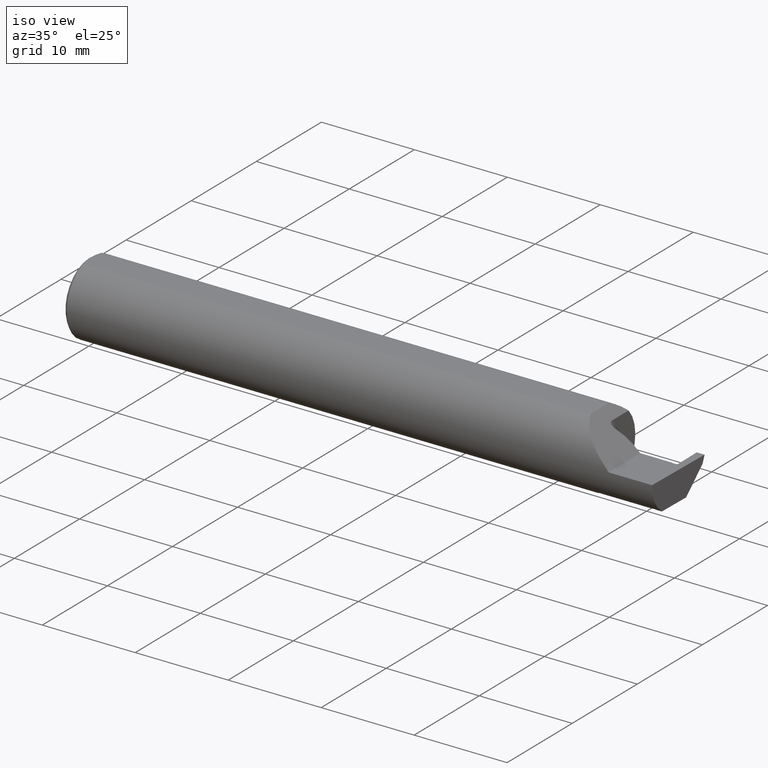
[diagram: clean part render]
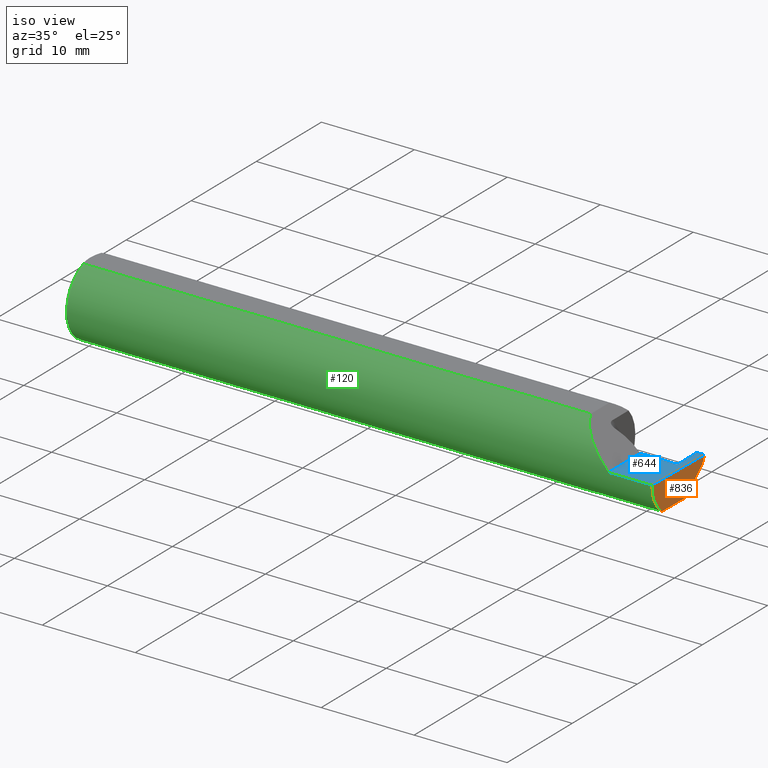
[diagram: same view with three faces highlighted in distinct colors, each labeled with its STEP entity id]
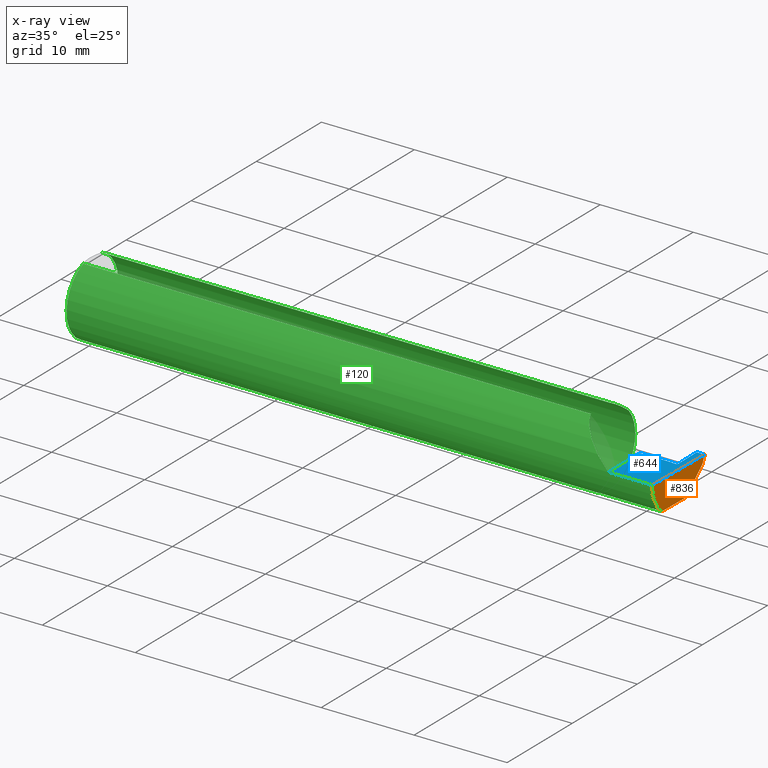
[diagram: x-ray of the same camera — body ghosted, the three highlighted faces saturated]
A machine part, iso view with three faces highlighted in distinct colors.
The next image is the same camera in x-ray (body ghosted, the three faces saturated) — at least one of them is partly hidden behind the body in this view.
Their STEP definitions:

[orange] entity #836 — the highlighted planar face has unit normal (-0.9995, 0.0174, 0.0262).
#41 = ORIENTED_EDGE ( 'NONE', *, *, #674, .T. ) ;
#55 = FACE_OUTER_BOUND ( 'NONE', #425, .T. ) ;
#108 = VERTEX_POINT ( 'NONE', #590 ) ;
#115 = DIRECTION ( 'NONE',  ( -0.01745240643727716257, -0.9998476951563912696, 1.869448656733061176E-16 ) ) ;
#121 = ORIENTED_EDGE ( 'NONE', *, *, #440, .F. ) ;
#126 = VERTEX_POINT ( 'NONE', #301 ) ;
#132 = DIRECTION ( 'NONE',  ( -0.01745240643727716603, -0.9998476951563912696, 0.000000000000000000 ) ) ;
#135 = LINE ( 'NONE', #218, #255 ) ;
#161 = CARTESIAN_POINT ( 'NONE',  ( 2.492408115719126460, -0.09360841750841747411, -0.1249186702281520206 ) ) ;
#176 = LINE ( 'NONE', #267, #456 ) ;
#195 =( BOUNDED_CURVE ( )  B_SPLINE_CURVE ( 3, ( #161, #454, #846, #765 ),
 .UNSPECIFIED., .F., .T. ) 
 B_SPLINE_CURVE_WITH_KNOTS ( ( 4, 4 ),
 ( 0.5517985523994612951, 0.5878737167659243701 ),
 .UNSPECIFIED. ) 
 CURVE ( )  GEOMETRIC_REPRESENTATION_ITEM ( )  RATIONAL_B_SPLINE_CURVE ( ( 1.000000000000000000, 0.9998915514833921492, 0.9998915514833921492, 1.000000000000000000 ) ) 
 REPRESENTATION_ITEM ( '' )  );
#197 = DIRECTION ( 'NONE',  ( -0.03084697155452407330, -0.7067702824630920366, -0.7067702824630894831 ) ) ;
#199 = ORIENTED_EDGE ( 'NONE', *, *, #466, .F. ) ;
#209 = EDGE_CURVE ( 'NONE', #939, #126, #530, .T. ) ;
#218 = CARTESIAN_POINT ( 'NONE',  ( 2.498907590953288960, 0.1410674343035965006, -0.03315840968442382991 ) ) ;
#255 = VECTOR ( 'NONE', #197, 39.37007874015748854 ) ;
#267 = CARTESIAN_POINT ( 'NONE',  ( 2.495673289801201733, 0.09357530910345747410, -0.1250000000000000278 ) ) ;
#301 = CARTESIAN_POINT ( 'NONE',  ( 2.494588929872255001, -0.1561000000000000443, 0.000000000000000000 ) ) ;
#317 = VECTOR ( 'NONE', #132, 39.37007874015748143 ) ;
#342 = DIRECTION ( 'NONE',  ( -0.9995050723230146650, 0.01744642593347468448, 0.02617694830787320806 ) ) ;
#352 = ORIENTED_EDGE ( 'NONE', *, *, #209, .F. ) ;
#353 = CARTESIAN_POINT ( 'NONE',  ( 2.500000000000000000, 0.1539000000000000090, 0.000000000000000000 ) ) ;
#364 = LINE ( 'NONE', #513, #317 ) ;
#396 = CARTESIAN_POINT ( 'NONE',  ( 2.492495113650786021, -0.1336908980339254205, -0.09488266708345007017 ) ) ;
#425 = EDGE_LOOP ( 'NONE', ( #41, #799, #199, #121, #833, #352 ) ) ;
#430 = PLANE ( 'NONE',  #914 ) ;
#440 = EDGE_CURVE ( 'NONE', #949, #845, #809, .T. ) ;
#454 = CARTESIAN_POINT ( 'NONE',  ( 2.492432917398131220, -0.09210618219364773152, -0.1249728871357007887 ) ) ;
#456 = VECTOR ( 'NONE', #115, 39.37007874015748143 ) ;
#466 = EDGE_CURVE ( 'NONE', #845, #108, #135, .T. ) ;
#513 = CARTESIAN_POINT ( 'NONE',  ( 2.500000000000000000, 0.1539000000000000090, 0.000000000000000000 ) ) ;
#522 = CARTESIAN_POINT ( 'NONE',  ( 2.499907390804593899, 0.1529096977137292535, -0.002876046671974680051 ) ) ;
#530 =( BOUNDED_CURVE ( )  B_SPLINE_CURVE ( 3, ( #676, #396, #608, #693 ),
 .UNSPECIFIED., .F., .F. ) 
 B_SPLINE_CURVE_WITH_KNOTS ( ( 4, 4 ),
 ( 0.05521439950980804034, 0.9829226100289724100 ),
 .UNSPECIFIED. ) 
 CURVE ( )  GEOMETRIC_REPRESENTATION_ITEM ( )  RATIONAL_B_SPLINE_CURVE ( ( 1.000000000000000000, 0.9295565493311498395, 0.9295565493311498395, 1.000000000000000000 ) ) 
 REPRESENTATION_ITEM ( '' )  );
#590 = CARTESIAN_POINT ( 'NONE',  ( 2.494899167008080454, 0.04922584398801997663, -0.1250000000000000278 ) ) ;
#608 = CARTESIAN_POINT ( 'NONE',  ( 2.493277140361873201, -0.1561000000000000165, -0.05008759057876776416 ) ) ;
#674 = EDGE_CURVE ( 'NONE', #939, #694, #195, .T. ) ;
#676 = CARTESIAN_POINT ( 'NONE',  ( 2.492408115719126460, -0.09360841750841747411, -0.1249186702281520206 ) ) ;
#683 = VECTOR ( 'NONE', #876, 39.37007874015748854 ) ;
#693 = CARTESIAN_POINT ( 'NONE',  ( 2.494588929872255001, -0.1561000000000000443, 0.000000000000000000 ) ) ;
#694 = VERTEX_POINT ( 'NONE', #929 ) ;
#726 = CARTESIAN_POINT ( 'NONE',  ( 2.499001794690755673, 0.1432258439880203515, -0.03099999999999999978 ) ) ;
#731 = CARTESIAN_POINT ( 'NONE',  ( 2.492408115719126460, -0.09360841750841747411, -0.1249186702281520206 ) ) ;
#765 = CARTESIAN_POINT ( 'NONE',  ( 2.492484680420020027, -0.08910000000000001252, -0.1250000000000000000 ) ) ;
#785 = EDGE_CURVE ( 'NONE', #108, #694, #176, .T. ) ;
#799 = ORIENTED_EDGE ( 'NONE', *, *, #785, .F. ) ;
#809 = LINE ( 'NONE', #522, #683 ) ;
#812 = CARTESIAN_POINT ( 'NONE',  ( 2.500000000000000000, 0.1539000000000000090, 0.000000000000000000 ) ) ;
#833 = ORIENTED_EDGE ( 'NONE', *, *, #965, .T. ) ;
#836 = ADVANCED_FACE ( 'NONE', ( #55 ), #430, .F. ) ;
#845 = VERTEX_POINT ( 'NONE', #726 ) ;
#846 = CARTESIAN_POINT ( 'NONE',  ( 2.492458441733171881, -0.09060321336276837279, -0.1250000000000000278 ) ) ;
#876 = DIRECTION ( 'NONE',  ( -0.03043175897092292859, -0.3254173665140246419, -0.9450806556146477133 ) ) ;
#914 = AXIS2_PLACEMENT_3D ( 'NONE', #353, #342, #940 ) ;
#929 = CARTESIAN_POINT ( 'NONE',  ( 2.492484680420020027, -0.08910000000000001252, -0.1250000000000000000 ) ) ;
#939 = VERTEX_POINT ( 'NONE', #731 ) ;
#940 = DIRECTION ( 'NONE',  ( 0.02618093305822682959, 0.000000000000000000, 0.9996572206232497981 ) ) ;
#949 = VERTEX_POINT ( 'NONE', #812 ) ;
#965 = EDGE_CURVE ( 'NONE', #949, #126, #364, .T. ) ;

[blue] entity #644 — the highlighted planar face has unit normal (-0, 0, -1).
#2 = LINE ( 'NONE', #831, #24 ) ;
#24 = VECTOR ( 'NONE', #388, 39.37007874015748143 ) ;
#69 = ORIENTED_EDGE ( 'NONE', *, *, #909, .T. ) ;
#73 = VERTEX_POINT ( 'NONE', #203 ) ;
#76 = CARTESIAN_POINT ( 'NONE',  ( 2.461471356043865466, 0.03389999999999733504, -4.703959157766966161E-11 ) ) ;
#82 = B_SPLINE_CURVE_WITH_KNOTS ( 'NONE', 1,
 ( #741, #893 ),
 .UNSPECIFIED., .F., .F.,
 ( 2, 2 ),
 ( 0.000000000000000000, 7.184204902311844461E-05 ),
 .UNSPECIFIED. ) ;
#83 = VERTEX_POINT ( 'NONE', #210 ) ;
#87 = CARTESIAN_POINT ( 'NONE',  ( 2.399999999999999911, 0.1539000000000000090, -2.694222958124035986E-19 ) ) ;
#126 = VERTEX_POINT ( 'NONE', #301 ) ;
#127 = DIRECTION ( 'NONE',  ( -1.000000000000000000, -0.000000000000000000, -0.000000000000000000 ) ) ;
#132 = DIRECTION ( 'NONE',  ( -0.01745240643727716603, -0.9998476951563912696, 0.000000000000000000 ) ) ;
#137 = VECTOR ( 'NONE', #589, 39.37007874015748143 ) ;
#159 = CARTESIAN_POINT ( 'NONE',  ( 2.444500000000001450, 0.03590000000000012625, 7.028497217831607559E-18 ) ) ;
#193 = LINE ( 'NONE', #950, #334 ) ;
#203 = CARTESIAN_POINT ( 'NONE',  ( 2.310000000000000053, 0.03589999999999998748, 2.326828918379970872E-17 ) ) ;
#210 = CARTESIAN_POINT ( 'NONE',  ( 2.461471356043865466, 0.03389999999999733504, -4.703959157766966161E-11 ) ) ;
#211 = EDGE_CURVE ( 'NONE', #73, #248, #2, .T. ) ;
#212 = DIRECTION ( 'NONE',  ( -1.000000000000000000, 0.000000000000000000, 1.224646799147353700E-16 ) ) ;
#227 = CARTESIAN_POINT ( 'NONE',  ( 2.310000000000000053, -0.1560999999999999888, 2.326828918379970872E-17 ) ) ;
#233 = LINE ( 'NONE', #87, #913 ) ;
#235 = VERTEX_POINT ( 'NONE', #227 ) ;
#248 = VERTEX_POINT ( 'NONE', #159 ) ;
#260 = ORIENTED_EDGE ( 'NONE', *, *, #832, .F. ) ;
#261 = CARTESIAN_POINT ( 'NONE',  ( 2.466499999986526692, 0.1539000000000000090, -2.694222958124035986E-19 ) ) ;
#285 = FACE_OUTER_BOUND ( 'NONE', #772, .T. ) ;
#292 = B_SPLINE_CURVE_WITH_KNOTS ( 'NONE', 1,
 ( #891, #963 ),
 .UNSPECIFIED., .F., .F.,
 ( 2, 2 ),
 ( 6.844623790517414348E-15, 0.002867533701434276348 ),
 .UNSPECIFIED. ) ;
#301 = CARTESIAN_POINT ( 'NONE',  ( 2.494588929872255001, -0.1561000000000000443, 0.000000000000000000 ) ) ;
#310 = VERTEX_POINT ( 'NONE', #735 ) ;
#313 = EDGE_CURVE ( 'NONE', #83, #310, #629, .T. ) ;
#317 = VECTOR ( 'NONE', #132, 39.37007874015748143 ) ;
#319 = ORIENTED_EDGE ( 'NONE', *, *, #965, .F. ) ;
#327 = EDGE_CURVE ( 'NONE', #837, #720, #292, .T. ) ;
#329 = ORIENTED_EDGE ( 'NONE', *, *, #211, .F. ) ;
#334 = VECTOR ( 'NONE', #127, 39.37007874015748143 ) ;
#335 = ORIENTED_EDGE ( 'NONE', *, *, #553, .T. ) ;
#362 = CARTESIAN_POINT ( 'NONE',  ( 2.310000000000000053, -0.2000000000000000111, 2.326828918379970872E-17 ) ) ;
#364 = LINE ( 'NONE', #513, #317 ) ;
#388 = DIRECTION ( 'NONE',  ( 1.000000000000000000, 0.000000000000000000, 0.000000000000000000 ) ) ;
#404 =( BOUNDED_CURVE ( )  B_SPLINE_CURVE ( 3, ( #596, #616, #901, #76 ),
 .UNSPECIFIED., .F., .F. ) 
 B_SPLINE_CURVE_WITH_KNOTS ( ( 4, 4 ),
 ( 4.336808689942023514E-19, 0.0002808519285673021903 ),
 .UNSPECIFIED. ) 
 CURVE ( )  GEOMETRIC_REPRESENTATION_ITEM ( )  RATIONAL_B_SPLINE_CURVE ( ( 1.000000000000000000, 0.8006061761999023751, 0.8006061761999023751, 1.000000000000000000 ) ) 
 REPRESENTATION_ITEM ( '' )  );
#409 = EDGE_CURVE ( 'NONE', #235, #73, #511, .T. ) ;
#461 = AXIS2_PLACEMENT_3D ( 'NONE', #819, #587, #212 ) ;
#472 = ORIENTED_EDGE ( 'NONE', *, *, #734, .F. ) ;
#511 = LINE ( 'NONE', #362, #137 ) ;
#513 = CARTESIAN_POINT ( 'NONE',  ( 2.500000000000000000, 0.1539000000000000090, 0.000000000000000000 ) ) ;
#553 = EDGE_CURVE ( 'NONE', #720, #83, #404, .T. ) ;
#587 = DIRECTION ( 'NONE',  ( -1.224646799147353700E-16, 0.000000000000000000, -1.000000000000000000 ) ) ;
#589 = DIRECTION ( 'NONE',  ( -0.000000000000000000, 1.000000000000000000, -0.000000000000000000 ) ) ;
#596 = CARTESIAN_POINT ( 'NONE',  ( 2.468470289915451144, 0.04102216684466002128, -1.256631204474260778E-10 ) ) ;
#616 = CARTESIAN_POINT ( 'NONE',  ( 2.468542847896572745, 0.03686532263356499806, -1.229295645786682751E-10 ) ) ;
#629 = B_SPLINE_CURVE_WITH_KNOTS ( 'NONE', 1,
 ( #898, #647 ),
 .UNSPECIFIED., .F., .F.,
 ( 2, 2 ),
 ( 0.000000000000000000, 0.0003802724434284199262 ),
 .UNSPECIFIED. ) ;
#644 = ADVANCED_FACE ( 'NONE', ( #285 ), #968, .F. ) ;
#647 = CARTESIAN_POINT ( 'NONE',  ( 2.446500000003375863, 0.03390000000033664002, -4.831952869992545383E-11 ) ) ;
#714 = ORIENTED_EDGE ( 'NONE', *, *, #327, .T. ) ;
#720 = VERTEX_POINT ( 'NONE', #754 ) ;
#734 = EDGE_CURVE ( 'NONE', #837, #949, #233, .T. ) ;
#735 = CARTESIAN_POINT ( 'NONE',  ( 2.446500000003375863, 0.03390000000033664002, -4.831952869992545383E-11 ) ) ;
#741 = CARTESIAN_POINT ( 'NONE',  ( 2.446500000003375863, 0.03390000000033664002, -4.831952869992545383E-11 ) ) ;
#754 = CARTESIAN_POINT ( 'NONE',  ( 2.468470289915451144, 0.04102216684466002128, -1.256631204474260778E-10 ) ) ;
#772 = EDGE_LOOP ( 'NONE', ( #260, #319, #472, #714, #335, #967, #69, #329, #776 ) ) ;
#776 = ORIENTED_EDGE ( 'NONE', *, *, #409, .F. ) ;
#812 = CARTESIAN_POINT ( 'NONE',  ( 2.500000000000000000, 0.1539000000000000090, 0.000000000000000000 ) ) ;
#819 = CARTESIAN_POINT ( 'NONE',  ( 2.500000000000000000, -0.2000000000000000111, 0.000000000000000000 ) ) ;
#831 = CARTESIAN_POINT ( 'NONE',  ( 2.205000000000000071, 0.03590000000000001523, 3.612708057484693206E-17 ) ) ;
#832 = EDGE_CURVE ( 'NONE', #126, #235, #193, .T. ) ;
#837 = VERTEX_POINT ( 'NONE', #261 ) ;
#838 = DIRECTION ( 'NONE',  ( 1.000000000000000000, -0.000000000000000000, -0.000000000000000000 ) ) ;
#891 = CARTESIAN_POINT ( 'NONE',  ( 2.466499999986526692, 0.1539000000000000090, -2.694222958124035986E-19 ) ) ;
#893 = CARTESIAN_POINT ( 'NONE',  ( 2.444500000000001450, 0.03590000000000012625, 7.028497217831607559E-18 ) ) ;
#898 = CARTESIAN_POINT ( 'NONE',  ( 2.461471356043865466, 0.03389999999999733504, -4.703959157766966161E-11 ) ) ;
#901 = CARTESIAN_POINT ( 'NONE',  ( 2.465628833460029146, 0.03389999999987911017, -1.205295656915241009E-10 ) ) ;
#909 = EDGE_CURVE ( 'NONE', #310, #248, #82, .T. ) ;
#913 = VECTOR ( 'NONE', #838, 39.37007874015748143 ) ;
#949 = VERTEX_POINT ( 'NONE', #812 ) ;
#950 = CARTESIAN_POINT ( 'NONE',  ( 3.749399456654646757E-32, -0.1560999999999999888, 3.061616997868384127E-16 ) ) ;
#963 = CARTESIAN_POINT ( 'NONE',  ( 2.468470289915451144, 0.04102216684466002128, -1.256631204474260778E-10 ) ) ;
#965 = EDGE_CURVE ( 'NONE', #949, #126, #364, .T. ) ;
#967 = ORIENTED_EDGE ( 'NONE', *, *, #313, .T. ) ;
#968 = PLANE ( 'NONE',  #461 ) ;

[green] entity #120 — the highlighted cylindrical surface (partial cylindrical patch) has radius 3.9649 mm, axis along (-1, -0, -0).
#11 = CIRCLE ( 'NONE', #752, 0.1560999999999999888 ) ;
#19 = CARTESIAN_POINT ( 'NONE',  ( 2.467958605918360693, -0.09612678835013575840, -0.1229930940699539982 ) ) ;
#30 = ORIENTED_EDGE ( 'NONE', *, *, #63, .F. ) ;
#47 = EDGE_CURVE ( 'NONE', #635, #667, #960, .T. ) ;
#50 = EDGE_CURVE ( 'NONE', #648, #635, #369, .T. ) ;
#53 = CARTESIAN_POINT ( 'NONE',  ( 2.172651720989708490, 0.07823201029329630851, 0.1373482790102923123 ) ) ;
#61 = CARTESIAN_POINT ( 'NONE',  ( 2.205000000000000071, 0.000000000000000000, 0.000000000000000000 ) ) ;
#63 = EDGE_CURVE ( 'NONE', #98, #437, #284, .T. ) ;
#64 = CARTESIAN_POINT ( 'NONE',  ( 2.214390565699350777, -0.08631243322371086324, -0.1301077001157307789 ) ) ;
#70 = CARTESIAN_POINT ( 'NONE',  ( 2.205000000000000515, -0.05502817059483720158, -0.1460791239054557156 ) ) ;
#72 = CARTESIAN_POINT ( 'NONE',  ( 2.205000000000000515, -0.05502817059483720158, -0.1460791239054557156 ) ) ;
#89 = CARTESIAN_POINT ( 'NONE',  ( 2.464512453545273818, -0.09635449354741776329, -0.1228129773130508806 ) ) ;
#91 = DIRECTION ( 'NONE',  ( -1.000000000000000000, -0.000000000000000000, -0.000000000000000000 ) ) ;
#93 = CARTESIAN_POINT ( 'NONE',  ( 2.460151538880659849, -0.09614402534619650997, -0.1229778415935772889 ) ) ;
#98 = VERTEX_POINT ( 'NONE', #964 ) ;
#102 = ORIENTED_EDGE ( 'NONE', *, *, #50, .F. ) ;
#104 = CARTESIAN_POINT ( 'NONE',  ( 2.163900000000000823, -0.05497272050753899270, 0.1460999999999999799 ) ) ;
#113 = ORIENTED_EDGE ( 'NONE', *, *, #863, .F. ) ;
#120 = ADVANCED_FACE ( 'NONE', ( #142 ), #442, .T. ) ;
#125 = CARTESIAN_POINT ( 'NONE',  ( 2.229999999999999982, -0.09360841750841744635, -0.1249186702281520206 ) ) ;
#126 = VERTEX_POINT ( 'NONE', #301 ) ;
#127 = DIRECTION ( 'NONE',  ( -1.000000000000000000, -0.000000000000000000, -0.000000000000000000 ) ) ;
#142 = FACE_OUTER_BOUND ( 'NONE', #928, .T. ) ;
#148 = CARTESIAN_POINT ( 'NONE',  ( 2.454544682360682462, -0.09587255434391700470, -0.1231895957532103958 ) ) ;
#149 = EDGE_CURVE ( 'NONE', #453, #458, #895, .T. ) ;
#153 = ORIENTED_EDGE ( 'NONE', *, *, #572, .T. ) ;
#155 = CARTESIAN_POINT ( 'NONE',  ( 2.452675738242421577, -0.09578185624616381011, -0.1232601283368374850 ) ) ;
#158 = EDGE_CURVE ( 'NONE', #458, #648, #617, .T. ) ;
#193 = LINE ( 'NONE', #950, #334 ) ;
#198 = AXIS2_PLACEMENT_3D ( 'NONE', #294, #594, #974 ) ;
#209 = EDGE_CURVE ( 'NONE', #939, #126, #530, .T. ) ;
#219 = DIRECTION ( 'NONE',  ( -1.000000000000000000, -0.000000000000000000, -0.000000000000000000 ) ) ;
#226 = CARTESIAN_POINT ( 'NONE',  ( 0.01499999999999999944, 0.000000000000000000, 0.000000000000000000 ) ) ;
#227 = CARTESIAN_POINT ( 'NONE',  ( 2.310000000000000053, -0.1560999999999999888, 2.326828918379970872E-17 ) ) ;
#235 = VERTEX_POINT ( 'NONE', #227 ) ;
#238 = CARTESIAN_POINT ( 'NONE',  ( 2.470920899338991283, -0.09360841750841744635, -0.1249186702281519928 ) ) ;
#244 = ORIENTED_EDGE ( 'NONE', *, *, #395, .F. ) ;
#250 = CARTESIAN_POINT ( 'NONE',  ( 2.310000000000000053, -0.1560999999999999888, 2.326828918379970872E-17 ) ) ;
#266 = ORIENTED_EDGE ( 'NONE', *, *, #158, .F. ) ;
#277 = CARTESIAN_POINT ( 'NONE',  ( 0.000000000000000000, 0.05497272050753900657, 0.1460999999999999799 ) ) ;
#278 = LINE ( 'NONE', #585, #598 ) ;
#283 = CARTESIAN_POINT ( 'NONE',  ( 2.205382848617945424, -0.06353102748571685943, -0.1426585117573466455 ) ) ;
#284 = LINE ( 'NONE', #277, #618 ) ;
#291 = CARTESIAN_POINT ( 'NONE',  ( 2.204999999999998295, -0.05933838711026685753, -0.1444554604868196757 ) ) ;
#294 = CARTESIAN_POINT ( 'NONE',  ( 0.000000000000000000, 0.000000000000000000, 0.000000000000000000 ) ) ;
#301 = CARTESIAN_POINT ( 'NONE',  ( 2.494588929872255001, -0.1561000000000000443, 0.000000000000000000 ) ) ;
#322 = CARTESIAN_POINT ( 'NONE',  ( 2.465758433798619809, -0.09641450834076170651, -0.1227658445228524409 ) ) ;
#334 = VECTOR ( 'NONE', #127, 39.37007874015748143 ) ;
#340 = EDGE_CURVE ( 'NONE', #667, #911, #870, .T. ) ;
#357 = ORIENTED_EDGE ( 'NONE', *, *, #340, .F. ) ;
#360 = VECTOR ( 'NONE', #573, 39.37007874015748143 ) ;
#368 = CARTESIAN_POINT ( 'NONE',  ( 2.449421300275415270, -0.09360841750841744635, -0.1249186702281520206 ) ) ;
#369 = B_SPLINE_CURVE_WITH_KNOTS ( 'NONE', 3,
 ( #378, #745, #523, #368 ),
 .UNSPECIFIED., .F., .F.,
 ( 4, 4 ),
 ( 0.000000000000000000, 7.520563975645600462E-05 ),
 .UNSPECIFIED. ) ;
#370 = DIRECTION ( 'NONE',  ( 1.000000000000000000, 0.000000000000000000, 0.000000000000000000 ) ) ;
#378 = CARTESIAN_POINT ( 'NONE',  ( 2.450806800179966327, -0.09569100258198982856, -0.1233306207916494146 ) ) ;
#382 = CARTESIAN_POINT ( 'NONE',  ( 2.458282582672913108, -0.09605363889359384844, -0.1230484523818361764 ) ) ;
#389 = ORIENTED_EDGE ( 'NONE', *, *, #952, .F. ) ;
#395 = EDGE_CURVE ( 'NONE', #602, #793, #432, .T. ) ;
#396 = CARTESIAN_POINT ( 'NONE',  ( 2.492495113650786021, -0.1336908980339254205, -0.09488266708345007017 ) ) ;
#398 = CARTESIAN_POINT ( 'NONE',  ( 2.205000000000000071, 0.1155084845368506419, 0.1050000000000006206 ) ) ;
#412 = ORIENTED_EDGE ( 'NONE', *, *, #486, .T. ) ;
#428 = CARTESIAN_POINT ( 'NONE',  ( 0.000000000000000000, -0.05497272050753900657, 0.1460999999999999799 ) ) ;
#432 = LINE ( 'NONE', #428, #360 ) ;
#434 = CARTESIAN_POINT ( 'NONE',  ( 0.01499999999999999944, 0.000000000000000000, -0.1560999999999999888 ) ) ;
#437 = VERTEX_POINT ( 'NONE', #662 ) ;
#442 = CYLINDRICAL_SURFACE ( 'NONE', #198, 0.1560999999999999888 ) ;
#449 = CARTESIAN_POINT ( 'NONE',  ( 2.242809217309687853, -0.1561000000000000165, 0.06719078269031264483 ) ) ;
#452 = CARTESIAN_POINT ( 'NONE',  ( 2.469692882973116621, -0.09506542078536019125, -0.1238152914559213363 ) ) ;
#453 = VERTEX_POINT ( 'NONE', #517 ) ;
#457 = CARTESIAN_POINT ( 'NONE',  ( 2.450806800179966327, -0.09569100258198982856, -0.1233306207916494146 ) ) ;
#458 = VERTEX_POINT ( 'NONE', #658 ) ;
#470 = DIRECTION ( 'NONE',  ( 0.000000000000000000, 0.000000000000000000, 1.000000000000000000 ) ) ;
#474 = CARTESIAN_POINT ( 'NONE',  ( 2.163900000000000823, -0.05497272050753899270, 0.1460999999999999799 ) ) ;
#476 = ORIENTED_EDGE ( 'NONE', *, *, #149, .F. ) ;
#486 = EDGE_CURVE ( 'NONE', #98, #764, #564, .T. ) ;
#491 = ORIENTED_EDGE ( 'NONE', *, *, #540, .F. ) ;
#507 = CARTESIAN_POINT ( 'NONE',  ( 2.225298065053173513, -0.09360841750841726594, -0.1249186702281522426 ) ) ;
#517 = CARTESIAN_POINT ( 'NONE',  ( 2.470920899338991283, -0.09360841750841744635, -0.1249186702281519928 ) ) ;
#523 = CARTESIAN_POINT ( 'NONE',  ( 2.449883294676054923, -0.09430673936950594027, -0.1243953793204867347 ) ) ;
#525 = CARTESIAN_POINT ( 'NONE',  ( 2.462020501176675147, -0.09623425573211674688, -0.1229071927255908220 ) ) ;
#530 =( BOUNDED_CURVE ( )  B_SPLINE_CURVE ( 3, ( #676, #396, #608, #693 ),
 .UNSPECIFIED., .F., .F. ) 
 B_SPLINE_CURVE_WITH_KNOTS ( ( 4, 4 ),
 ( 0.05521439950980804034, 0.9829226100289724100 ),
 .UNSPECIFIED. ) 
 CURVE ( )  GEOMETRIC_REPRESENTATION_ITEM ( )  RATIONAL_B_SPLINE_CURVE ( ( 1.000000000000000000, 0.9295565493311498395, 0.9295565493311498395, 1.000000000000000000 ) ) 
 REPRESENTATION_ITEM ( '' )  );
#533 = CARTESIAN_POINT ( 'NONE',  ( 2.465758433798619809, -0.09641450834076170651, -0.1227658445228524409 ) ) ;
#540 = EDGE_CURVE ( 'NONE', #970, #602, #542, .T. ) ;
#542 = CIRCLE ( 'NONE', #669, 0.1560999999999999888 ) ;
#549 = CARTESIAN_POINT ( 'NONE',  ( 2.205000000000000071, 0.1155084845368506419, 0.1050000000000006206 ) ) ;
#564 =( BOUNDED_CURVE ( )  B_SPLINE_CURVE ( 3, ( #744, #53, #696, #549 ),
 .UNSPECIFIED., .F., .F. ) 
 B_SPLINE_CURVE_WITH_KNOTS ( ( 4, 4 ),
 ( 0.3598816721999159585, 0.8330178286033869117 ),
 .UNSPECIFIED. ) 
 CURVE ( )  GEOMETRIC_REPRESENTATION_ITEM ( )  RATIONAL_B_SPLINE_CURVE ( ( 1.000000000000000000, 0.9814320198864697753, 0.9814320198864697753, 1.000000000000000000 ) ) 
 REPRESENTATION_ITEM ( '' )  );
#572 = EDGE_CURVE ( 'NONE', #235, #793, #798, .T. ) ;
#573 = DIRECTION ( 'NONE',  ( 1.000000000000000000, 0.000000000000000000, 0.000000000000000000 ) ) ;
#575 = ORIENTED_EDGE ( 'NONE', *, *, #832, .T. ) ;
#585 = CARTESIAN_POINT ( 'NONE',  ( 2.345749999999999780, -0.09360841750841747411, -0.1249186702281520206 ) ) ;
#594 = DIRECTION ( 'NONE',  ( -1.000000000000000000, -0.000000000000000000, -0.000000000000000000 ) ) ;
#598 = VECTOR ( 'NONE', #805, 39.37007874015748143 ) ;
#602 = VERTEX_POINT ( 'NONE', #790 ) ;
#608 = CARTESIAN_POINT ( 'NONE',  ( 2.493277140361873201, -0.1561000000000000165, -0.05008759057876776416 ) ) ;
#617 = B_SPLINE_CURVE_WITH_KNOTS ( 'NONE', 3,
 ( #322, #89, #685, #525, #93, #382, #828, #148, #155, #457 ),
 .UNSPECIFIED., .F., .F.,
 ( 4, 3, 3, 4 ),
 ( 0.000000000000000000, 9.512159469321303565E-05, 0.0002378039910566792409, 0.0003804863916271773857 ),
 .UNSPECIFIED. ) ;
#618 = VECTOR ( 'NONE', #955, 39.37007874015748143 ) ;
#635 = VERTEX_POINT ( 'NONE', #961 ) ;
#648 = VERTEX_POINT ( 'NONE', #976 ) ;
#654 = ORIENTED_EDGE ( 'NONE', *, *, #47, .F. ) ;
#658 = CARTESIAN_POINT ( 'NONE',  ( 2.465758433798619809, -0.09641450834076170651, -0.1227658445228524409 ) ) ;
#662 = CARTESIAN_POINT ( 'NONE',  ( 0.01499999999999999771, 0.05497272050753900657, 0.1460999999999999799 ) ) ;
#664 = DIRECTION ( 'NONE',  ( 0.000000000000000000, 0.000000000000000000, -1.000000000000000000 ) ) ;
#666 = CARTESIAN_POINT ( 'NONE',  ( 2.208298581922916171, -0.07564908586346462405, -0.1366096273808739270 ) ) ;
#667 = VERTEX_POINT ( 'NONE', #738 ) ;
#669 = AXIS2_PLACEMENT_3D ( 'NONE', #226, #675, #470 ) ;
#675 = DIRECTION ( 'NONE',  ( -1.000000000000000000, -0.000000000000000000, -0.000000000000000000 ) ) ;
#676 = CARTESIAN_POINT ( 'NONE',  ( 2.492408115719126460, -0.09360841750841747411, -0.1249186702281520206 ) ) ;
#685 = CARTESIAN_POINT ( 'NONE',  ( 2.463266476005480321, -0.09629440932103061623, -0.1228600934815973073 ) ) ;
#689 = ORIENTED_EDGE ( 'NONE', *, *, #758, .F. ) ;
#693 = CARTESIAN_POINT ( 'NONE',  ( 2.494588929872255001, -0.1561000000000000443, 0.000000000000000000 ) ) ;
#696 = CARTESIAN_POINT ( 'NONE',  ( 2.186610915026993229, 0.09879236251423235970, 0.1233890849730072958 ) ) ;
#716 = VECTOR ( 'NONE', #219, 39.37007874015748143 ) ;
#725 = ORIENTED_EDGE ( 'NONE', *, *, #209, .T. ) ;
#731 = CARTESIAN_POINT ( 'NONE',  ( 2.492408115719126460, -0.09360841750841747411, -0.1249186702281520206 ) ) ;
#736 = CARTESIAN_POINT ( 'NONE',  ( 2.345749999999999780, -0.09360841750841747411, -0.1249186702281520206 ) ) ;
#738 = CARTESIAN_POINT ( 'NONE',  ( 2.229999999999999982, -0.09360841750841744635, -0.1249186702281520206 ) ) ;
#744 = CARTESIAN_POINT ( 'NONE',  ( 2.163900000000000823, 0.05497272050753900657, 0.1460999999999999799 ) ) ;
#745 = CARTESIAN_POINT ( 'NONE',  ( 2.450345122213076099, -0.09500094058789948503, -0.1238660330326190051 ) ) ;
#749 = CARTESIAN_POINT ( 'NONE',  ( 2.470372502178170837, -0.09436783887069258303, -0.1243495941099482804 ) ) ;
#752 = AXIS2_PLACEMENT_3D ( 'NONE', #761, #91, #773 ) ;
#758 = EDGE_CURVE ( 'NONE', #437, #970, #11, .T. ) ;
#761 = CARTESIAN_POINT ( 'NONE',  ( 0.01499999999999999944, 0.000000000000000000, 0.000000000000000000 ) ) ;
#764 = VERTEX_POINT ( 'NONE', #398 ) ;
#767 = AXIS2_PLACEMENT_3D ( 'NONE', #61, #370, #664 ) ;
#773 = DIRECTION ( 'NONE',  ( 0.000000000000000000, 0.000000000000000000, 1.000000000000000000 ) ) ;
#790 = CARTESIAN_POINT ( 'NONE',  ( 0.01499999999999999944, -0.05497272050753900657, 0.1460999999999999799 ) ) ;
#793 = VERTEX_POINT ( 'NONE', #104 ) ;
#798 =( BOUNDED_CURVE ( )  B_SPLINE_CURVE ( 3, ( #250, #449, #904, #474 ),
 .UNSPECIFIED., .F., .F. ) 
 B_SPLINE_CURVE_WITH_KNOTS ( ( 4, 4 ),
 ( 4.712388980384689674, 5.923303634979670385 ),
 .UNSPECIFIED. ) 
 CURVE ( )  GEOMETRIC_REPRESENTATION_ITEM ( )  RATIONAL_B_SPLINE_CURVE ( ( 1.000000000000000000, 0.8814946008038386793, 0.8814946008038386793, 1.000000000000000000 ) ) 
 REPRESENTATION_ITEM ( '' )  );
#805 = DIRECTION ( 'NONE',  ( -1.000000000000000000, -0.000000000000000000, -0.000000000000000000 ) ) ;
#828 = CARTESIAN_POINT ( 'NONE',  ( 2.456413632544351078, -0.09596309662009026853, -0.1231190240664828822 ) ) ;
#832 = EDGE_CURVE ( 'NONE', #126, #235, #193, .T. ) ;
#835 = CARTESIAN_POINT ( 'NONE',  ( 2.466870854322137596, -0.09646808989141412993, -0.1227237640982655198 ) ) ;
#863 = EDGE_CURVE ( 'NONE', #911, #764, #869, .T. ) ;
#869 = CIRCLE ( 'NONE', #767, 0.1560999999999999888 ) ;
#870 = B_SPLINE_CURVE_WITH_KNOTS ( 'NONE', 3,
 ( #125, #507, #954, #64, #959, #666, #969, #283, #291, #72 ),
 .UNSPECIFIED., .F., .F.,
 ( 4, 2, 2, 2, 4 ),
 ( 1.958690481313001990E-07, 0.0003511029445248094400, 0.0007020100200014876444, 0.001052917095478166391, 0.001403824170954845246 ),
 .UNSPECIFIED. ) ;
#895 = B_SPLINE_CURVE_WITH_KNOTS ( 'NONE', 3,
 ( #238, #749, #452, #19, #835, #533 ),
 .UNSPECIFIED., .F., .F.,
 ( 4, 2, 4 ),
 ( 0.0002236906814595032418, 0.0003060031443915136695, 0.0003883156073235241243 ),
 .UNSPECIFIED. ) ;
#904 = CARTESIAN_POINT ( 'NONE',  ( 2.187562140406902333, -0.1178591609371013593, 0.1224378595930983027 ) ) ;
#911 = VERTEX_POINT ( 'NONE', #70 ) ;
#928 = EDGE_LOOP ( 'NONE', ( #389, #725, #575, #153, #244, #491, #689, #30, #412, #113, #357, #654, #102, #266, #476 ) ) ;
#939 = VERTEX_POINT ( 'NONE', #731 ) ;
#950 = CARTESIAN_POINT ( 'NONE',  ( 3.749399456654646757E-32, -0.1560999999999999888, 3.061616997868384127E-16 ) ) ;
#952 = EDGE_CURVE ( 'NONE', #939, #453, #278, .T. ) ;
#954 = CARTESIAN_POINT ( 'NONE',  ( 2.220963332554101832, -0.09167217634395832815, -0.1263885352504913462 ) ) ;
#955 = DIRECTION ( 'NONE',  ( -1.000000000000000000, -0.000000000000000000, -0.000000000000000000 ) ) ;
#959 = CARTESIAN_POINT ( 'NONE',  ( 2.211963077135974842, -0.08291057444783002384, -0.1323284214741863862 ) ) ;
#960 = LINE ( 'NONE', #736, #716 ) ;
#961 = CARTESIAN_POINT ( 'NONE',  ( 2.449421300275415270, -0.09360841750841744635, -0.1249186702281520206 ) ) ;
#964 = CARTESIAN_POINT ( 'NONE',  ( 2.163900000000000823, 0.05497272050753900657, 0.1460999999999999799 ) ) ;
#969 = CARTESIAN_POINT ( 'NONE',  ( 2.207026367118634536, -0.07167964287766651066, -0.1387431844349195920 ) ) ;
#970 = VERTEX_POINT ( 'NONE', #434 ) ;
#974 = DIRECTION ( 'NONE',  ( 0.000000000000000000, 0.000000000000000000, 1.000000000000000000 ) ) ;
#976 = CARTESIAN_POINT ( 'NONE',  ( 2.450806800179966327, -0.09569100258198982856, -0.1233306207916494146 ) ) ;